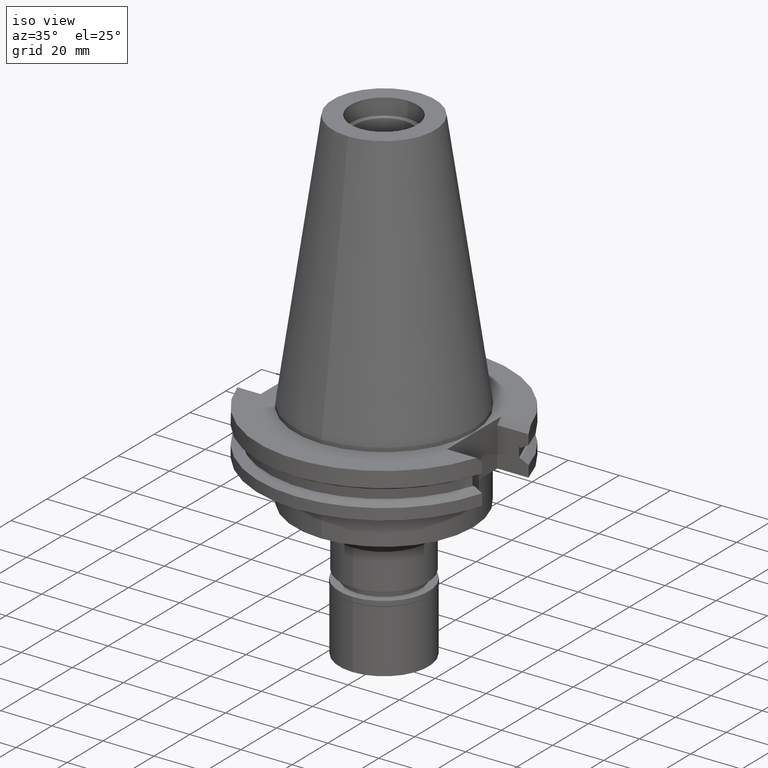
[diagram: clean part render]
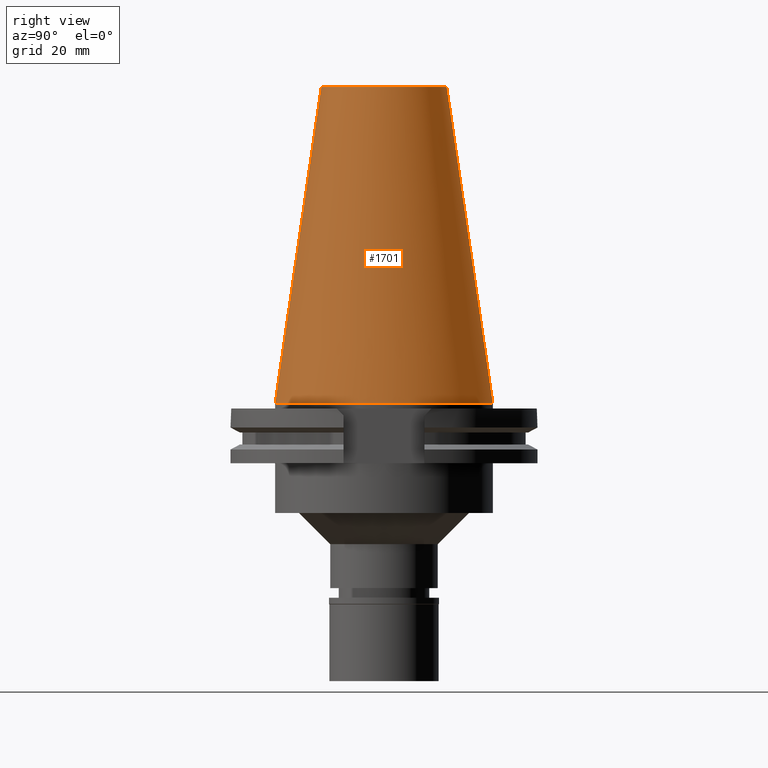
[diagram: tour spotlight — one face highlighted and labeled with its STEP entity id]
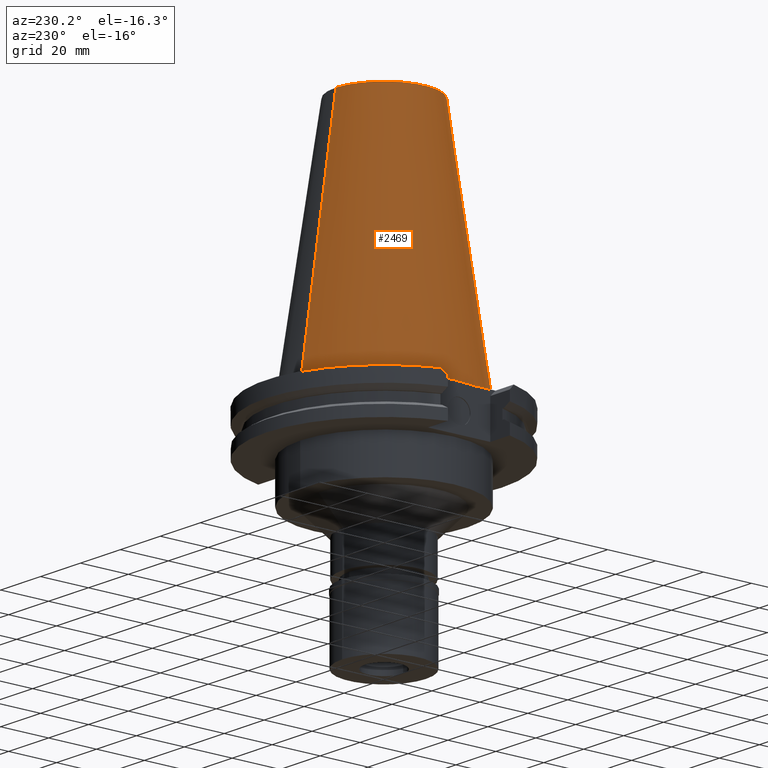
[diagram: tour spotlight — one face highlighted and labeled with its STEP entity id]
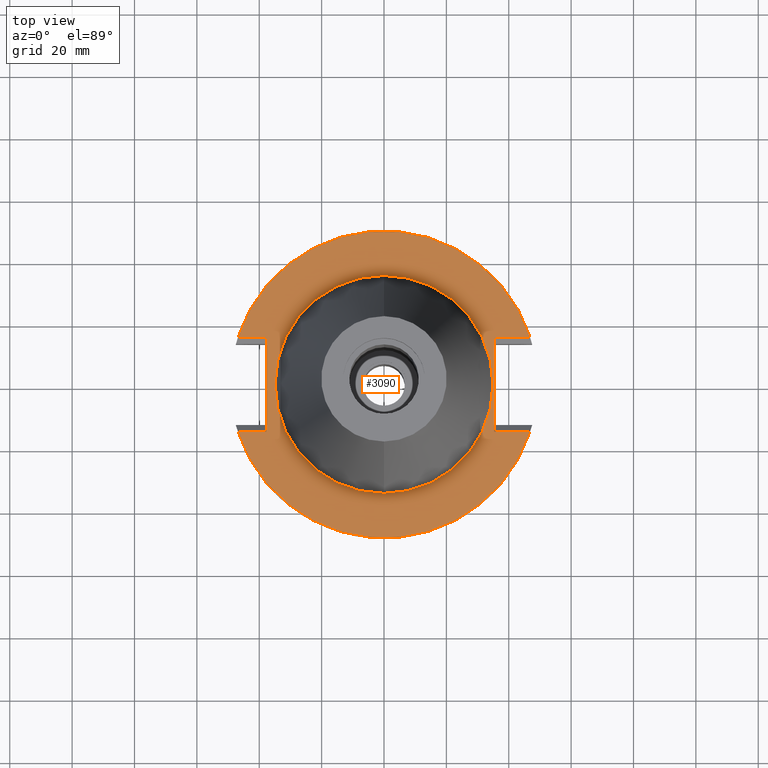
[diagram: tour spotlight — one face highlighted and labeled with its STEP entity id]
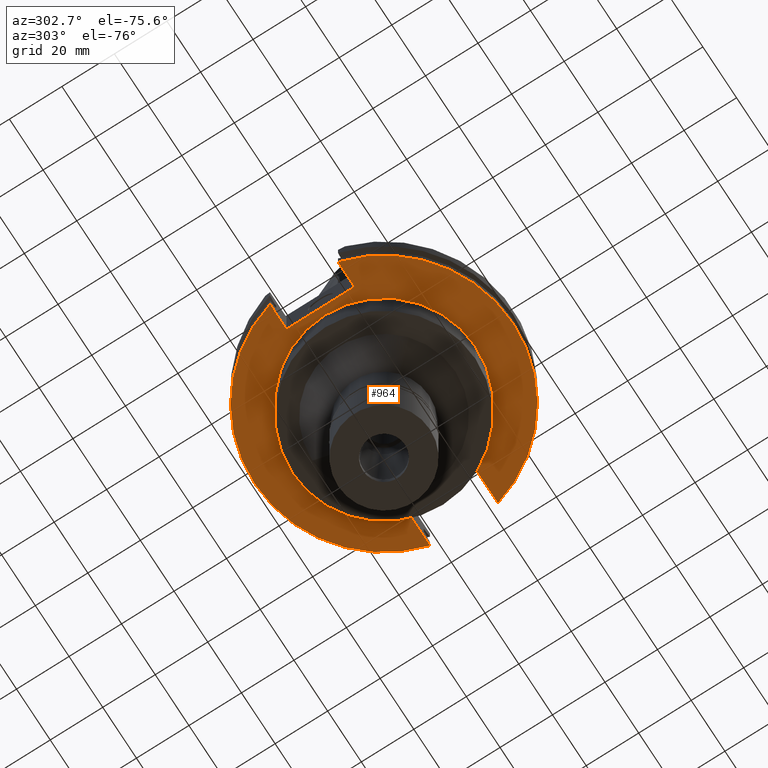
[diagram: tour spotlight — one face highlighted and labeled with its STEP entity id]
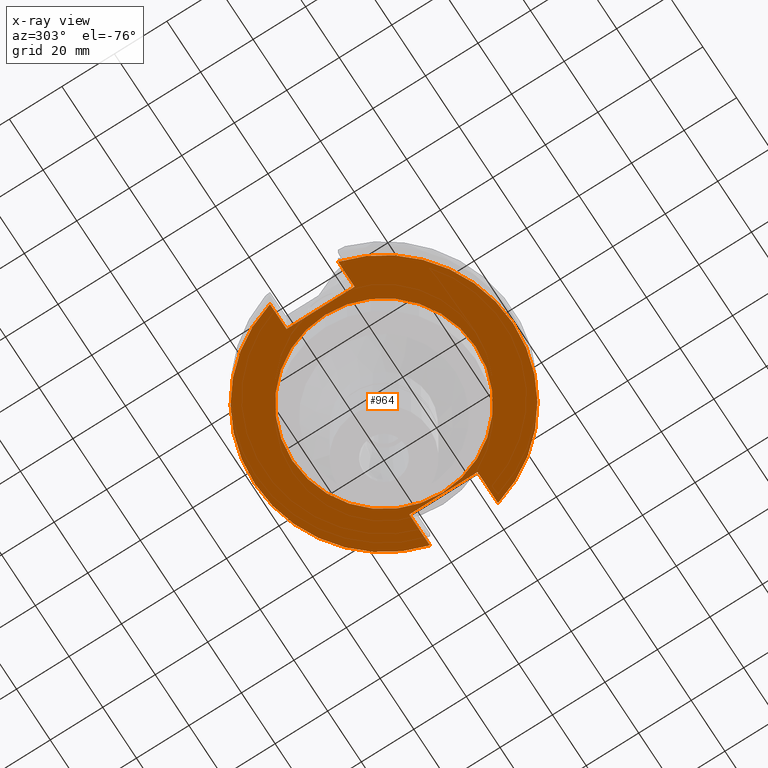
[diagram: x-ray of the same camera — body ghosted, this tour face saturated]
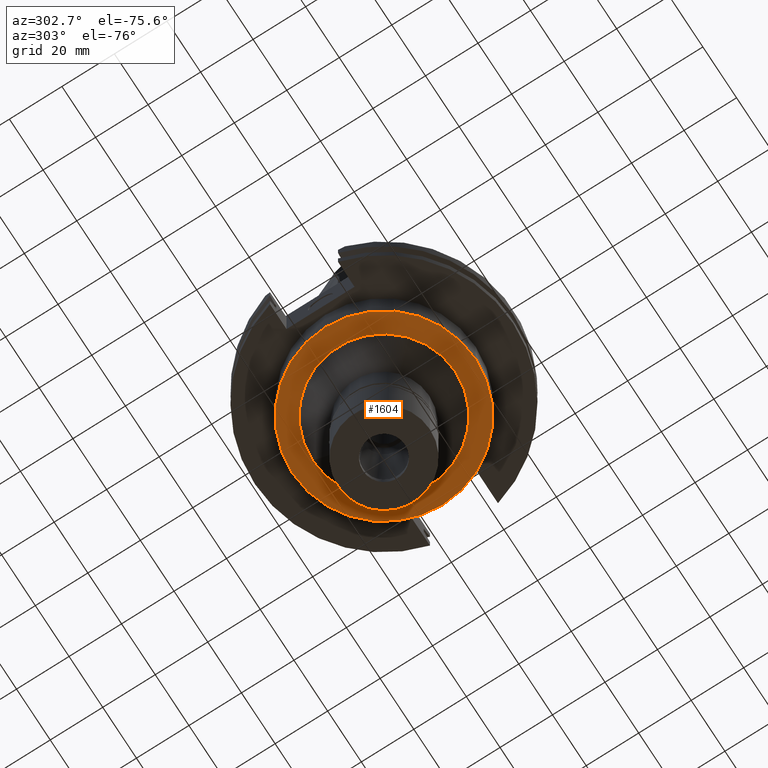
[diagram: tour spotlight — one face highlighted and labeled with its STEP entity id]
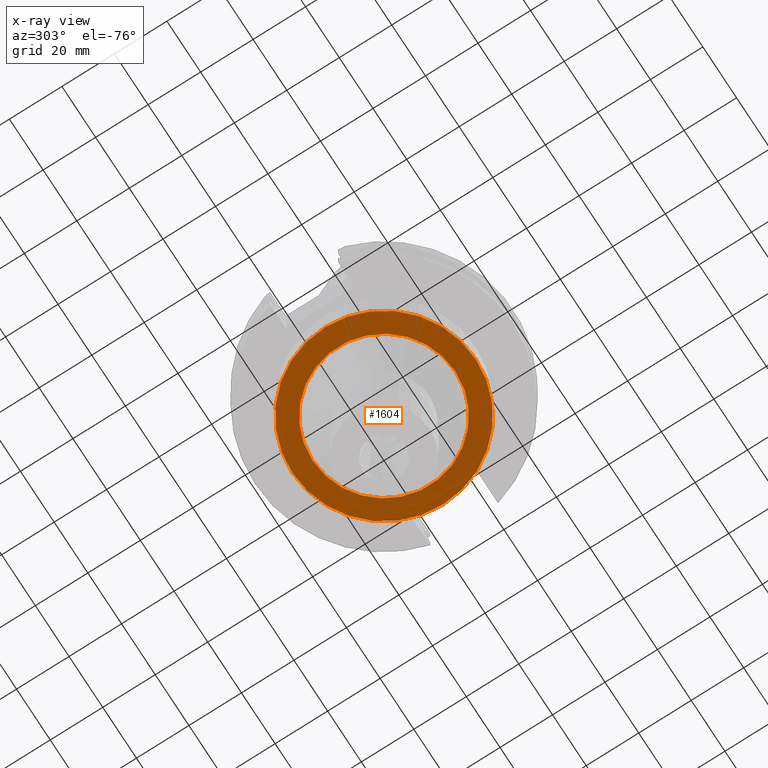
[diagram: x-ray of the same camera — body ghosted, this tour face saturated]
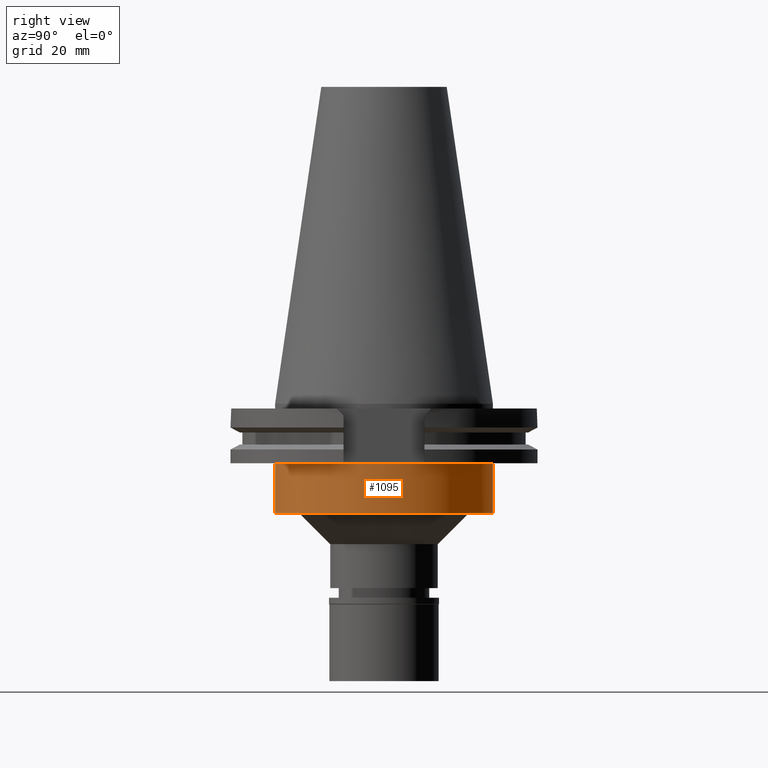
[diagram: tour spotlight — one face highlighted and labeled with its STEP entity id]
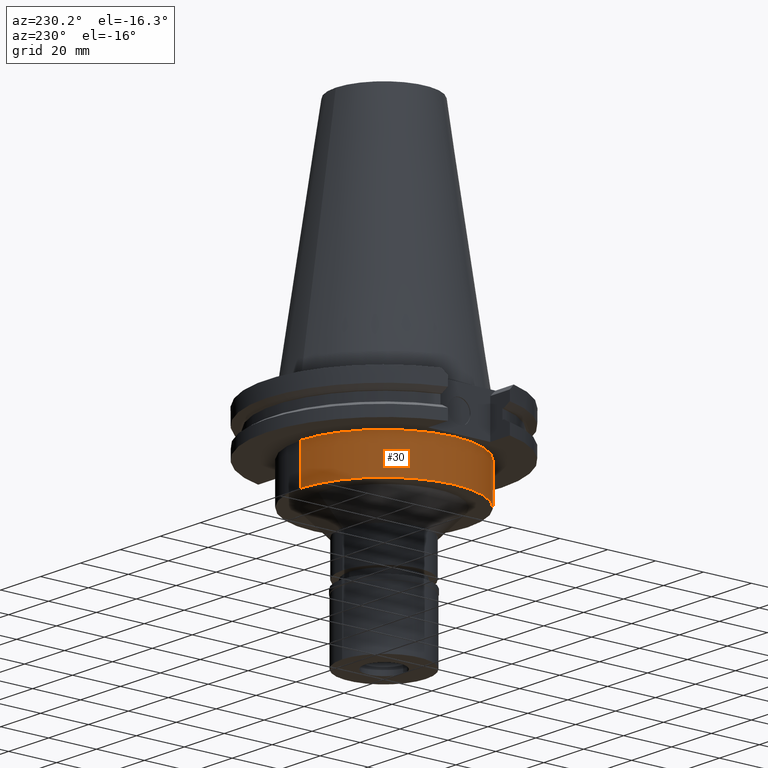
[diagram: tour spotlight — one face highlighted and labeled with its STEP entity id]
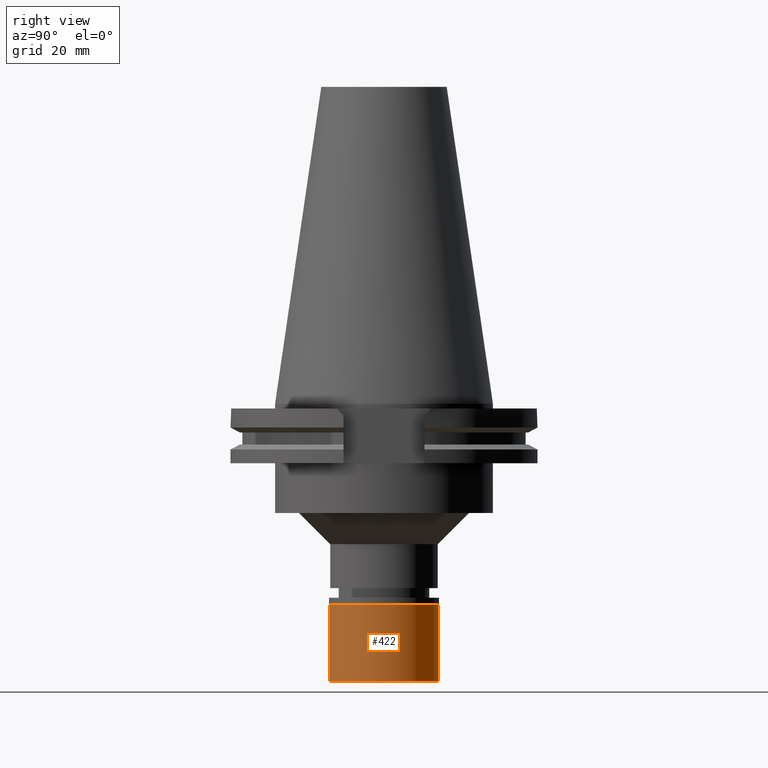
[diagram: tour spotlight — one face highlighted and labeled with its STEP entity id]
A machine part: a face-by-face anatomy tour. The part has 91 B-rep faces; the first image is the clean iso view, then the 8 largest visible faces are spotlighted one at a time (largest first), each with its STEP entity span.

Face 1 — right view, entity #1701. In plain terms, the highlighted conical surface has half-angle 8.297 deg.
Definition (entity closure, byte-faithful):
#120 = VERTEX_POINT ( 'NONE', #1569 ) ;
#403 = AXIS2_PLACEMENT_3D ( 'NONE', #1336, #3143, #1352 ) ;
#431 = CARTESIAN_POINT ( 'NONE',  ( 0.0000000000000000000, -20.10832422387000307, 101.5999999999999943 ) ) ;
#460 = CARTESIAN_POINT ( 'NONE',  ( 0.0000000000000000000, 20.10832422387000307, 101.5999999999999943 ) ) ;
#566 = VECTOR ( 'NONE', #1490, 1000.000000000000114 ) ;
#790 = CIRCLE ( 'NONE', #403, 34.92499999999999716 ) ;
#887 = ORIENTED_EDGE ( 'NONE', *, *, #994, .T. ) ;
#900 = CARTESIAN_POINT ( 'NONE',  ( 0.0000000000000000000, 20.10832422388000040, 101.5999999999999943 ) ) ;
#936 = LINE ( 'NONE', #431, #2237 ) ;
#958 = DIRECTION ( 'NONE',  ( 0.0000000000000000000, 0.0000000000000000000, -1.000000000000000000 ) ) ;
#994 = EDGE_CURVE ( 'NONE', #120, #2710, #936, .T. ) ;
#1171 = FACE_OUTER_BOUND ( 'NONE', #1768, .T. ) ;
#1176 = ORIENTED_EDGE ( 'NONE', *, *, #1228, .F. ) ;
#1204 = DIRECTION ( 'NONE',  ( 0.0000000000000000000, -1.000000000000000000, 0.0000000000000000000 ) ) ;
#1228 = EDGE_CURVE ( 'NONE', #1502, #2150, #2770, .T. ) ;
#1304 = CARTESIAN_POINT ( 'NONE',  ( 0.0000000000000000000, -34.92499999999999716, 4.618527782441000579E-13 ) ) ;
#1333 = EDGE_CURVE ( 'NONE', #2150, #2710, #790, .T. ) ;
#1336 = CARTESIAN_POINT ( 'NONE',  ( 0.0000000000000000000, 1.846767373113999857E-14, 7.389644451905000534E-13 ) ) ;
#1352 = DIRECTION ( 'NONE',  ( 0.0000000000000000000, 1.000000000000000000, 0.0000000000000000000 ) ) ;
#1460 = EDGE_CURVE ( 'NONE', #1502, #120, #3082, .T. ) ;
#1469 = CARTESIAN_POINT ( 'NONE',  ( 0.0000000000000000000, 1.846767373113999857E-14, 101.5999999999999943 ) ) ;
#1490 = DIRECTION ( 'NONE',  ( 0.0000000000000000000, 0.1443069799456937474, -0.9895329683941577192 ) ) ;
#1502 = VERTEX_POINT ( 'NONE', #900 ) ;
#1569 = CARTESIAN_POINT ( 'NONE',  ( 0.0000000000000000000, -20.10832422388000040, 101.5999999999999943 ) ) ;
#1638 = AXIS2_PLACEMENT_3D ( 'NONE', #1469, #3228, #2451 ) ;
#1640 = AXIS2_PLACEMENT_3D ( 'NONE', #1715, #958, #1204 ) ;
#1701 = ADVANCED_FACE ( 'NONE', ( #1171 ), #3141, .T. ) ;
#1715 = CARTESIAN_POINT ( 'NONE',  ( 0.0000000000000000000, 1.846767373113999857E-14, 50.79999999999999716 ) ) ;
#1768 = EDGE_LOOP ( 'NONE', ( #3072, #887, #3180, #1176 ) ) ;
#1831 = CARTESIAN_POINT ( 'NONE',  ( 0.0000000000000000000, 34.92499999999999716, 4.618527782441000579E-13 ) ) ;
#2150 = VERTEX_POINT ( 'NONE', #1831 ) ;
#2237 = VECTOR ( 'NONE', #2689, 1000.000000000000114 ) ;
#2451 = DIRECTION ( 'NONE',  ( 0.0000000000000000000, 1.000000000000000000, 0.0000000000000000000 ) ) ;
#2689 = DIRECTION ( 'NONE',  ( 0.0000000000000000000, -0.1443069799456937474, -0.9895329683941577192 ) ) ;
#2710 = VERTEX_POINT ( 'NONE', #1304 ) ;
#2770 = LINE ( 'NONE', #460, #566 ) ;
#3072 = ORIENTED_EDGE ( 'NONE', *, *, #1460, .T. ) ;
#3082 = CIRCLE ( 'NONE', #1638, 20.10832422388000040 ) ;
#3141 = CONICAL_SURFACE ( 'NONE', #1640, 27.51666211194000056, 0.1448125860318199565 ) ;
#3143 = DIRECTION ( 'NONE',  ( 0.0000000000000000000, 0.0000000000000000000, -1.000000000000000000 ) ) ;
#3180 = ORIENTED_EDGE ( 'NONE', *, *, #1333, .F. ) ;
#3228 = DIRECTION ( 'NONE',  ( 0.0000000000000000000, 0.0000000000000000000, -1.000000000000000000 ) ) ;

Face 2 — auxiliary view, entity #2469. In plain terms, the highlighted conical surface has half-angle 8.297 deg.
Definition (entity closure, byte-faithful):
#6 = CIRCLE ( 'NONE', #287, 20.10832422388000040 ) ;
#120 = VERTEX_POINT ( 'NONE', #1569 ) ;
#163 = CONICAL_SURFACE ( 'NONE', #2433, 27.51666211194000056, 0.1448125860318199565 ) ;
#185 = DIRECTION ( 'NONE',  ( 0.0000000000000000000, 0.0000000000000000000, -1.000000000000000000 ) ) ;
#287 = AXIS2_PLACEMENT_3D ( 'NONE', #2926, #562, #623 ) ;
#431 = CARTESIAN_POINT ( 'NONE',  ( 0.0000000000000000000, -20.10832422387000307, 101.5999999999999943 ) ) ;
#448 = DIRECTION ( 'NONE',  ( 0.0000000000000000000, 0.0000000000000000000, -1.000000000000000000 ) ) ;
#460 = CARTESIAN_POINT ( 'NONE',  ( 0.0000000000000000000, 20.10832422387000307, 101.5999999999999943 ) ) ;
#542 = ORIENTED_EDGE ( 'NONE', *, *, #1228, .T. ) ;
#562 = DIRECTION ( 'NONE',  ( 0.0000000000000000000, 0.0000000000000000000, -1.000000000000000000 ) ) ;
#566 = VECTOR ( 'NONE', #1490, 1000.000000000000114 ) ;
#567 = AXIS2_PLACEMENT_3D ( 'NONE', #1214, #185, #2232 ) ;
#623 = DIRECTION ( 'NONE',  ( 0.0000000000000000000, -1.000000000000000000, 0.0000000000000000000 ) ) ;
#895 = CIRCLE ( 'NONE', #567, 34.92499999999999716 ) ;
#900 = CARTESIAN_POINT ( 'NONE',  ( 0.0000000000000000000, 20.10832422388000040, 101.5999999999999943 ) ) ;
#936 = LINE ( 'NONE', #431, #2237 ) ;
#994 = EDGE_CURVE ( 'NONE', #120, #2710, #936, .T. ) ;
#1214 = CARTESIAN_POINT ( 'NONE',  ( 0.0000000000000000000, 1.846767373113999857E-14, 7.389644451905000534E-13 ) ) ;
#1228 = EDGE_CURVE ( 'NONE', #1502, #2150, #2770, .T. ) ;
#1304 = CARTESIAN_POINT ( 'NONE',  ( 0.0000000000000000000, -34.92499999999999716, 4.618527782441000579E-13 ) ) ;
#1314 = ORIENTED_EDGE ( 'NONE', *, *, #2612, .T. ) ;
#1474 = FACE_OUTER_BOUND ( 'NONE', #1643, .T. ) ;
#1490 = DIRECTION ( 'NONE',  ( 0.0000000000000000000, 0.1443069799456937474, -0.9895329683941577192 ) ) ;
#1493 = CARTESIAN_POINT ( 'NONE',  ( 0.0000000000000000000, 1.846767373113999857E-14, 50.79999999999999716 ) ) ;
#1502 = VERTEX_POINT ( 'NONE', #900 ) ;
#1569 = CARTESIAN_POINT ( 'NONE',  ( 0.0000000000000000000, -20.10832422388000040, 101.5999999999999943 ) ) ;
#1622 = EDGE_CURVE ( 'NONE', #2710, #2150, #895, .T. ) ;
#1643 = EDGE_LOOP ( 'NONE', ( #2849, #2266, #1314, #542 ) ) ;
#1831 = CARTESIAN_POINT ( 'NONE',  ( 0.0000000000000000000, 34.92499999999999716, 4.618527782441000579E-13 ) ) ;
#2150 = VERTEX_POINT ( 'NONE', #1831 ) ;
#2232 = DIRECTION ( 'NONE',  ( 0.0000000000000000000, -1.000000000000000000, 0.0000000000000000000 ) ) ;
#2237 = VECTOR ( 'NONE', #2689, 1000.000000000000114 ) ;
#2266 = ORIENTED_EDGE ( 'NONE', *, *, #994, .F. ) ;
#2433 = AXIS2_PLACEMENT_3D ( 'NONE', #1493, #448, #2528 ) ;
#2469 = ADVANCED_FACE ( 'NONE', ( #1474 ), #163, .T. ) ;
#2528 = DIRECTION ( 'NONE',  ( 0.0000000000000000000, -1.000000000000000000, 0.0000000000000000000 ) ) ;
#2612 = EDGE_CURVE ( 'NONE', #120, #1502, #6, .T. ) ;
#2689 = DIRECTION ( 'NONE',  ( 0.0000000000000000000, -0.1443069799456937474, -0.9895329683941577192 ) ) ;
#2710 = VERTEX_POINT ( 'NONE', #1304 ) ;
#2770 = LINE ( 'NONE', #460, #566 ) ;
#2849 = ORIENTED_EDGE ( 'NONE', *, *, #1622, .F. ) ;
#2926 = CARTESIAN_POINT ( 'NONE',  ( 0.0000000000000000000, 1.846767373113999857E-14, 101.5999999999999943 ) ) ;

Face 3 — top view, entity #3090. In plain terms, the highlighted planar face has unit normal (0, 0, -1).
Definition (entity closure, byte-faithful):
#130 = VERTEX_POINT ( 'NONE', #1224 ) ;
#132 = VERTEX_POINT ( 'NONE', #2972 ) ;
#277 = CARTESIAN_POINT ( 'NONE',  ( 46.82089417396999664, -15.15499999999999936, -1.500000000000000000 ) ) ;
#293 = EDGE_LOOP ( 'NONE', ( #2149, #2534 ) ) ;
#307 = PLANE ( 'NONE',  #2695 ) ;
#318 = CARTESIAN_POINT ( 'NONE',  ( 35.27000000000000313, 15.15499999999999936, -1.500000000000000000 ) ) ;
#354 = FACE_OUTER_BOUND ( 'NONE', #2726, .T. ) ;
#364 = CIRCLE ( 'NONE', #2680, 34.92499999999999716 ) ;
#512 = AXIS2_PLACEMENT_3D ( 'NONE', #998, #1253, #2817 ) ;
#553 = CARTESIAN_POINT ( 'NONE',  ( 0.0000000000000000000, 2.578799997304999674E-14, -1.500000000000000000 ) ) ;
#613 = CARTESIAN_POINT ( 'NONE',  ( 35.27000000000000313, -15.15499999999999936, -1.500000000000000000 ) ) ;
#644 = EDGE_CURVE ( 'NONE', #2602, #1657, #794, .T. ) ;
#673 = EDGE_CURVE ( 'NONE', #875, #3001, #3035, .T. ) ;
#794 = LINE ( 'NONE', #3066, #2074 ) ;
#828 = DIRECTION ( 'NONE',  ( 0.0000000000000000000, -1.000000000000000000, 0.0000000000000000000 ) ) ;
#838 = CARTESIAN_POINT ( 'NONE',  ( 0.0000000000000000000, 34.92499999999999716, -1.500000000000000000 ) ) ;
#875 = VERTEX_POINT ( 'NONE', #613 ) ;
#880 = EDGE_CURVE ( 'NONE', #130, #875, #1909, .T. ) ;
#899 = EDGE_CURVE ( 'NONE', #1500, #2603, #364, .T. ) ;
#909 = DIRECTION ( 'NONE',  ( 1.000000000000000000, 0.0000000000000000000, 0.0000000000000000000 ) ) ;
#910 = ORIENTED_EDGE ( 'NONE', *, *, #2379, .F. ) ;
#955 = CARTESIAN_POINT ( 'NONE',  ( 0.0000000000000000000, 2.578799997304999674E-14, -1.500000000000000000 ) ) ;
#959 = EDGE_CURVE ( 'NONE', #1319, #2602, #2719, .T. ) ;
#966 = CARTESIAN_POINT ( 'NONE',  ( -46.82089417396999664, 15.15499999999999936, -1.500000000000000000 ) ) ;
#982 = DIRECTION ( 'NONE',  ( 0.0000000000000000000, 0.0000000000000000000, -1.000000000000000000 ) ) ;
#998 = CARTESIAN_POINT ( 'NONE',  ( 0.0000000000000000000, 2.578799997304999674E-14, -1.500000000000000000 ) ) ;
#1034 = CIRCLE ( 'NONE', #2252, 34.92499999999999716 ) ;
#1051 = CARTESIAN_POINT ( 'NONE',  ( -37.67999999999999972, 15.15499999999999936, -1.500000000000000000 ) ) ;
#1054 = CARTESIAN_POINT ( 'NONE',  ( 35.27000000000000313, -15.15499999999999936, -1.500000000000000000 ) ) ;
#1087 = CIRCLE ( 'NONE', #1522, 49.21249999999999858 ) ;
#1106 = DIRECTION ( 'NONE',  ( 0.0000000000000000000, 0.0000000000000000000, -1.000000000000000000 ) ) ;
#1113 = VECTOR ( 'NONE', #1470, 1000.000000000000000 ) ;
#1157 = EDGE_CURVE ( 'NONE', #1657, #132, #2510, .T. ) ;
#1224 = CARTESIAN_POINT ( 'NONE',  ( 35.27000000000000313, 15.15499999999999936, -1.500000000000000000 ) ) ;
#1253 = DIRECTION ( 'NONE',  ( 0.0000000000000000000, 0.0000000000000000000, -1.000000000000000000 ) ) ;
#1272 = LINE ( 'NONE', #3037, #2722 ) ;
#1274 = VECTOR ( 'NONE', #2261, 1000.000000000000000 ) ;
#1292 = DIRECTION ( 'NONE',  ( -1.000000000000000000, 1.204850662821000088E-14, 0.0000000000000000000 ) ) ;
#1319 = VERTEX_POINT ( 'NONE', #3124 ) ;
#1331 = CARTESIAN_POINT ( 'NONE',  ( 0.0000000000000000000, 2.578799997304999674E-14, -1.500000000000000000 ) ) ;
#1395 = DIRECTION ( 'NONE',  ( 0.0000000000000000000, 1.000000000000000000, 0.0000000000000000000 ) ) ;
#1464 = CARTESIAN_POINT ( 'NONE',  ( 35.27000000000000313, 15.15499999999999936, -1.500000000000000000 ) ) ;
#1470 = DIRECTION ( 'NONE',  ( 0.0000000000000000000, 1.000000000000000000, 0.0000000000000000000 ) ) ;
#1500 = VERTEX_POINT ( 'NONE', #2947 ) ;
#1522 = AXIS2_PLACEMENT_3D ( 'NONE', #955, #982, #2005 ) ;
#1548 = ORIENTED_EDGE ( 'NONE', *, *, #1952, .T. ) ;
#1571 = ORIENTED_EDGE ( 'NONE', *, *, #959, .F. ) ;
#1657 = VERTEX_POINT ( 'NONE', #966 ) ;
#1662 = ORIENTED_EDGE ( 'NONE', *, *, #880, .F. ) ;
#1663 = ORIENTED_EDGE ( 'NONE', *, *, #1157, .F. ) ;
#1810 = DIRECTION ( 'NONE',  ( -1.000000000000000000, -1.243716813234000012E-14, 0.0000000000000000000 ) ) ;
#1826 = EDGE_CURVE ( 'NONE', #130, #132, #2482, .T. ) ;
#1873 = FACE_BOUND ( 'NONE', #293, .T. ) ;
#1909 = LINE ( 'NONE', #318, #2837 ) ;
#1952 = EDGE_CURVE ( 'NONE', #1319, #2716, #1272, .T. ) ;
#2005 = DIRECTION ( 'NONE',  ( 0.0000000000000000000, -1.000000000000000000, 0.0000000000000000000 ) ) ;
#2074 = VECTOR ( 'NONE', #1810, 1000.000000000000000 ) ;
#2149 = ORIENTED_EDGE ( 'NONE', *, *, #3069, .F. ) ;
#2236 = CARTESIAN_POINT ( 'NONE',  ( -37.67999999999999972, -15.15499999999999936, -1.500000000000000000 ) ) ;
#2252 = AXIS2_PLACEMENT_3D ( 'NONE', #1331, #3170, #1395 ) ;
#2261 = DIRECTION ( 'NONE',  ( 1.000000000000000000, 1.014982473518000116E-14, 0.0000000000000000000 ) ) ;
#2356 = DIRECTION ( 'NONE',  ( 0.0000000000000000000, -1.000000000000000000, 0.0000000000000000000 ) ) ;
#2379 = EDGE_CURVE ( 'NONE', #3001, #2716, #1087, .T. ) ;
#2400 = DIRECTION ( 'NONE',  ( 0.0000000000000000000, -1.000000000000000000, 0.0000000000000000000 ) ) ;
#2482 = LINE ( 'NONE', #1464, #3193 ) ;
#2493 = ORIENTED_EDGE ( 'NONE', *, *, #1826, .T. ) ;
#2510 = CIRCLE ( 'NONE', #512, 49.21249999999999858 ) ;
#2534 = ORIENTED_EDGE ( 'NONE', *, *, #899, .F. ) ;
#2602 = VERTEX_POINT ( 'NONE', #1051 ) ;
#2603 = VERTEX_POINT ( 'NONE', #838 ) ;
#2680 = AXIS2_PLACEMENT_3D ( 'NONE', #553, #3148, #2400 ) ;
#2695 = AXIS2_PLACEMENT_3D ( 'NONE', #3185, #1106, #2356 ) ;
#2716 = VERTEX_POINT ( 'NONE', #3225 ) ;
#2719 = LINE ( 'NONE', #2236, #1113 ) ;
#2722 = VECTOR ( 'NONE', #1292, 1000.000000000000000 ) ;
#2726 = EDGE_LOOP ( 'NONE', ( #1548, #910, #2848, #1662, #2493, #1663, #2956, #1571 ) ) ;
#2817 = DIRECTION ( 'NONE',  ( 0.0000000000000000000, 1.000000000000000000, 0.0000000000000000000 ) ) ;
#2837 = VECTOR ( 'NONE', #828, 1000.000000000000000 ) ;
#2848 = ORIENTED_EDGE ( 'NONE', *, *, #673, .F. ) ;
#2947 = CARTESIAN_POINT ( 'NONE',  ( 0.0000000000000000000, -34.92499999999999716, -1.500000000000000000 ) ) ;
#2956 = ORIENTED_EDGE ( 'NONE', *, *, #644, .F. ) ;
#2972 = CARTESIAN_POINT ( 'NONE',  ( 46.82089417396999664, 15.15499999999999936, -1.500000000000000000 ) ) ;
#3001 = VERTEX_POINT ( 'NONE', #277 ) ;
#3035 = LINE ( 'NONE', #1054, #1274 ) ;
#3037 = CARTESIAN_POINT ( 'NONE',  ( -37.67999999999999972, -15.15499999999999936, -1.500000000000000000 ) ) ;
#3066 = CARTESIAN_POINT ( 'NONE',  ( -37.67999999999999972, 15.15499999999999936, -1.500000000000000000 ) ) ;
#3069 = EDGE_CURVE ( 'NONE', #2603, #1500, #1034, .T. ) ;
#3090 = ADVANCED_FACE ( 'NONE', ( #354, #1873 ), #307, .F. ) ;
#3124 = CARTESIAN_POINT ( 'NONE',  ( -37.67999999999999972, -15.15499999999999936, -1.500000000000000000 ) ) ;
#3148 = DIRECTION ( 'NONE',  ( 0.0000000000000000000, 0.0000000000000000000, 1.000000000000000000 ) ) ;
#3170 = DIRECTION ( 'NONE',  ( 0.0000000000000000000, 0.0000000000000000000, 1.000000000000000000 ) ) ;
#3185 = CARTESIAN_POINT ( 'NONE',  ( 0.0000000000000000000, 1.206277097159999845E-14, -1.500000000000000000 ) ) ;
#3193 = VECTOR ( 'NONE', #909, 1000.000000000000000 ) ;
#3225 = CARTESIAN_POINT ( 'NONE',  ( -46.82089417396999664, -15.15499999999999936, -1.500000000000000000 ) ) ;

Face 4 — auxiliary view, entity #964. An x-ray twin of the same camera follows (body ghosted, this face saturated) — the face is partly hidden behind the body. In plain terms, the highlighted planar face has unit normal (0, 0, -1).
Definition (entity closure, byte-faithful):
#20 = DIRECTION ( 'NONE',  ( 1.000000000000000000, 1.455229645530999953E-14, 0.0000000000000000000 ) ) ;
#85 = LINE ( 'NONE', #1086, #1605 ) ;
#129 = CIRCLE ( 'NONE', #1693, 34.92499999999999716 ) ;
#147 = EDGE_CURVE ( 'NONE', #509, #2078, #1328, .T. ) ;
#219 = ORIENTED_EDGE ( 'NONE', *, *, #1153, .F. ) ;
#225 = DIRECTION ( 'NONE',  ( 0.0000000000000000000, 0.0000000000000000000, -1.000000000000000000 ) ) ;
#271 = EDGE_CURVE ( 'NONE', #2305, #314, #833, .T. ) ;
#281 = DIRECTION ( 'NONE',  ( -1.000000000000000000, -1.795085297572000011E-14, 0.0000000000000000000 ) ) ;
#314 = VERTEX_POINT ( 'NONE', #949 ) ;
#336 = CARTESIAN_POINT ( 'NONE',  ( 47.47671146204000081, -12.95500000000000007, -19.05000000000000071 ) ) ;
#415 = LINE ( 'NONE', #1911, #2657 ) ;
#446 = FACE_BOUND ( 'NONE', #1408, .T. ) ;
#486 = ORIENTED_EDGE ( 'NONE', *, *, #843, .T. ) ;
#509 = VERTEX_POINT ( 'NONE', #640 ) ;
#640 = CARTESIAN_POINT ( 'NONE',  ( -47.47671146204000081, -12.95500000000000007, -19.05000000000000071 ) ) ;
#651 = EDGE_CURVE ( 'NONE', #2665, #854, #1789, .T. ) ;
#744 = AXIS2_PLACEMENT_3D ( 'NONE', #2213, #3272, #2743 ) ;
#755 = CARTESIAN_POINT ( 'NONE',  ( 35.27000000000000313, -12.95500000000000007, -19.05000000000000071 ) ) ;
#833 = LINE ( 'NONE', #3137, #2407 ) ;
#843 = EDGE_CURVE ( 'NONE', #314, #1301, #85, .T. ) ;
#854 = VERTEX_POINT ( 'NONE', #3164 ) ;
#935 = VERTEX_POINT ( 'NONE', #2611 ) ;
#949 = CARTESIAN_POINT ( 'NONE',  ( -37.67999999999999972, 12.95500000000000007, -19.05000000000000071 ) ) ;
#964 = ADVANCED_FACE ( 'NONE', ( #3264, #446 ), #2184, .T. ) ;
#1068 = CARTESIAN_POINT ( 'NONE',  ( 35.27000000000000313, -12.95500000000000007, -19.05000000000000071 ) ) ;
#1086 = CARTESIAN_POINT ( 'NONE',  ( -37.67999999999999972, 12.95500000000000007, -19.05000000000000071 ) ) ;
#1100 = EDGE_CURVE ( 'NONE', #2293, #935, #1546, .T. ) ;
#1118 = EDGE_LOOP ( 'NONE', ( #486, #2965, #1568, #1986, #1717, #2590, #3223, #1767 ) ) ;
#1153 = EDGE_CURVE ( 'NONE', #935, #2293, #129, .T. ) ;
#1196 = VERTEX_POINT ( 'NONE', #755 ) ;
#1205 = EDGE_CURVE ( 'NONE', #2305, #509, #2836, .T. ) ;
#1301 = VERTEX_POINT ( 'NONE', #1318 ) ;
#1303 = EDGE_CURVE ( 'NONE', #1196, #2078, #1607, .T. ) ;
#1318 = CARTESIAN_POINT ( 'NONE',  ( -47.47671146204000081, 12.95500000000000007, -19.05000000000000071 ) ) ;
#1320 = CARTESIAN_POINT ( 'NONE',  ( 35.27000000000000313, 12.95500000000000007, -19.05000000000000071 ) ) ;
#1328 = CIRCLE ( 'NONE', #744, 49.21249999999999858 ) ;
#1370 = DIRECTION ( 'NONE',  ( -1.000000000000000000, 1.813217472294999948E-14, 0.0000000000000000000 ) ) ;
#1403 = ORIENTED_EDGE ( 'NONE', *, *, #1100, .F. ) ;
#1408 = EDGE_LOOP ( 'NONE', ( #1403, #219 ) ) ;
#1420 = CARTESIAN_POINT ( 'NONE',  ( -37.67999999999999972, -12.95500000000000007, -19.05000000000000071 ) ) ;
#1506 = DIRECTION ( 'NONE',  ( 0.0000000000000000000, 1.000000000000000000, 0.0000000000000000000 ) ) ;
#1546 = CIRCLE ( 'NONE', #2013, 34.92499999999999716 ) ;
#1568 = ORIENTED_EDGE ( 'NONE', *, *, #651, .F. ) ;
#1589 = VECTOR ( 'NONE', #2378, 1000.000000000000000 ) ;
#1605 = VECTOR ( 'NONE', #1370, 1000.000000000000000 ) ;
#1607 = LINE ( 'NONE', #1068, #1589 ) ;
#1693 = AXIS2_PLACEMENT_3D ( 'NONE', #2034, #225, #3312 ) ;
#1711 = CARTESIAN_POINT ( 'NONE',  ( 0.0000000000000000000, 0.0000000000000000000, -19.05000000000000071 ) ) ;
#1717 = ORIENTED_EDGE ( 'NONE', *, *, #1303, .T. ) ;
#1767 = ORIENTED_EDGE ( 'NONE', *, *, #271, .T. ) ;
#1789 = LINE ( 'NONE', #1830, #1814 ) ;
#1814 = VECTOR ( 'NONE', #20, 1000.000000000000000 ) ;
#1830 = CARTESIAN_POINT ( 'NONE',  ( 35.27000000000000313, 12.95500000000000007, -19.05000000000000071 ) ) ;
#1837 = AXIS2_PLACEMENT_3D ( 'NONE', #2038, #3063, #3110 ) ;
#1899 = CARTESIAN_POINT ( 'NONE',  ( 0.0000000000000000000, 34.92499999999999716, -19.05000000000000071 ) ) ;
#1911 = CARTESIAN_POINT ( 'NONE',  ( 35.27000000000000313, 12.95500000000000007, -19.05000000000000071 ) ) ;
#1986 = ORIENTED_EDGE ( 'NONE', *, *, #2202, .T. ) ;
#2001 = CARTESIAN_POINT ( 'NONE',  ( 0.0000000000000000000, 2.578799997304999674E-14, -19.05000000000000071 ) ) ;
#2013 = AXIS2_PLACEMENT_3D ( 'NONE', #2001, #2526, #1506 ) ;
#2034 = CARTESIAN_POINT ( 'NONE',  ( 0.0000000000000000000, 2.578799997304999674E-14, -19.05000000000000071 ) ) ;
#2038 = CARTESIAN_POINT ( 'NONE',  ( 0.0000000000000000000, 2.578799997304999674E-14, -19.05000000000000071 ) ) ;
#2078 = VERTEX_POINT ( 'NONE', #336 ) ;
#2184 = PLANE ( 'NONE',  #3260 ) ;
#2202 = EDGE_CURVE ( 'NONE', #2665, #1196, #415, .T. ) ;
#2207 = DIRECTION ( 'NONE',  ( 0.0000000000000000000, -1.000000000000000000, 0.0000000000000000000 ) ) ;
#2213 = CARTESIAN_POINT ( 'NONE',  ( 0.0000000000000000000, 2.578799997304999674E-14, -19.05000000000000071 ) ) ;
#2293 = VERTEX_POINT ( 'NONE', #1899 ) ;
#2305 = VERTEX_POINT ( 'NONE', #1420 ) ;
#2378 = DIRECTION ( 'NONE',  ( 1.000000000000000000, -1.411572756165000194E-14, 0.0000000000000000000 ) ) ;
#2391 = VECTOR ( 'NONE', #281, 1000.000000000000000 ) ;
#2407 = VECTOR ( 'NONE', #2942, 1000.000000000000000 ) ;
#2507 = DIRECTION ( 'NONE',  ( 0.0000000000000000000, -1.000000000000000000, 0.0000000000000000000 ) ) ;
#2526 = DIRECTION ( 'NONE',  ( 0.0000000000000000000, 0.0000000000000000000, -1.000000000000000000 ) ) ;
#2535 = EDGE_CURVE ( 'NONE', #854, #1301, #2701, .T. ) ;
#2590 = ORIENTED_EDGE ( 'NONE', *, *, #147, .F. ) ;
#2593 = CARTESIAN_POINT ( 'NONE',  ( -37.67999999999999972, -12.95500000000000007, -19.05000000000000071 ) ) ;
#2611 = CARTESIAN_POINT ( 'NONE',  ( 0.0000000000000000000, -34.92499999999999716, -19.05000000000000071 ) ) ;
#2657 = VECTOR ( 'NONE', #2207, 1000.000000000000000 ) ;
#2665 = VERTEX_POINT ( 'NONE', #1320 ) ;
#2701 = CIRCLE ( 'NONE', #1837, 49.21249999999999858 ) ;
#2703 = DIRECTION ( 'NONE',  ( 0.0000000000000000000, 0.0000000000000000000, -1.000000000000000000 ) ) ;
#2743 = DIRECTION ( 'NONE',  ( 0.0000000000000000000, -1.000000000000000000, 0.0000000000000000000 ) ) ;
#2836 = LINE ( 'NONE', #2593, #2391 ) ;
#2942 = DIRECTION ( 'NONE',  ( 0.0000000000000000000, 1.000000000000000000, 0.0000000000000000000 ) ) ;
#2965 = ORIENTED_EDGE ( 'NONE', *, *, #2535, .F. ) ;
#3063 = DIRECTION ( 'NONE',  ( 0.0000000000000000000, 0.0000000000000000000, 1.000000000000000000 ) ) ;
#3110 = DIRECTION ( 'NONE',  ( 0.0000000000000000000, 1.000000000000000000, 0.0000000000000000000 ) ) ;
#3137 = CARTESIAN_POINT ( 'NONE',  ( -37.67999999999999972, -12.95500000000000007, -19.05000000000000071 ) ) ;
#3164 = CARTESIAN_POINT ( 'NONE',  ( 47.47671146204000081, 12.95500000000000007, -19.05000000000000071 ) ) ;
#3223 = ORIENTED_EDGE ( 'NONE', *, *, #1205, .F. ) ;
#3260 = AXIS2_PLACEMENT_3D ( 'NONE', #1711, #2703, #2507 ) ;
#3264 = FACE_OUTER_BOUND ( 'NONE', #1118, .T. ) ;
#3272 = DIRECTION ( 'NONE',  ( 0.0000000000000000000, 0.0000000000000000000, 1.000000000000000000 ) ) ;
#3312 = DIRECTION ( 'NONE',  ( 0.0000000000000000000, -1.000000000000000000, 0.0000000000000000000 ) ) ;

Face 5 — auxiliary view, entity #1604. An x-ray twin of the same camera follows (body ghosted, this face saturated) — the face is partly hidden behind the body. In plain terms, the highlighted planar face has unit normal (0, 0, -1).
Definition (entity closure, byte-faithful):
#93 = AXIS2_PLACEMENT_3D ( 'NONE', #1700, #421, #960 ) ;
#245 = CARTESIAN_POINT ( 'NONE',  ( 0.0000000000000000000, 2.578799997304999674E-14, -35.00000000000000000 ) ) ;
#421 = DIRECTION ( 'NONE',  ( 0.0000000000000000000, 0.0000000000000000000, 1.000000000000000000 ) ) ;
#453 = CARTESIAN_POINT ( 'NONE',  ( 0.0000000000000000000, 0.0000000000000000000, -35.00000000000000000 ) ) ;
#647 = DIRECTION ( 'NONE',  ( 0.0000000000000000000, 1.000000000000000000, 0.0000000000000000000 ) ) ;
#752 = VERTEX_POINT ( 'NONE', #2547 ) ;
#862 = CIRCLE ( 'NONE', #93, 34.92499999999999716 ) ;
#882 = CARTESIAN_POINT ( 'NONE',  ( 0.0000000000000000000, 27.25000000000000000, -35.00000000000000000 ) ) ;
#944 = CIRCLE ( 'NONE', #3138, 34.92499999999999716 ) ;
#948 = PLANE ( 'NONE',  #2461 ) ;
#960 = DIRECTION ( 'NONE',  ( 0.0000000000000000000, 1.000000000000000000, 0.0000000000000000000 ) ) ;
#1055 = AXIS2_PLACEMENT_3D ( 'NONE', #1930, #2955, #647 ) ;
#1120 = EDGE_CURVE ( 'NONE', #752, #3231, #944, .T. ) ;
#1179 = DIRECTION ( 'NONE',  ( 0.0000000000000000000, -1.000000000000000000, 0.0000000000000000000 ) ) ;
#1332 = EDGE_LOOP ( 'NONE', ( #1361, #1968 ) ) ;
#1338 = CIRCLE ( 'NONE', #2532, 27.25000000000000000 ) ;
#1361 = ORIENTED_EDGE ( 'NONE', *, *, #1838, .F. ) ;
#1410 = VERTEX_POINT ( 'NONE', #2095 ) ;
#1479 = DIRECTION ( 'NONE',  ( 0.0000000000000000000, 0.0000000000000000000, -1.000000000000000000 ) ) ;
#1581 = VERTEX_POINT ( 'NONE', #882 ) ;
#1604 = ADVANCED_FACE ( 'NONE', ( #1969, #2435 ), #948, .T. ) ;
#1634 = CARTESIAN_POINT ( 'NONE',  ( 0.0000000000000000000, 34.92499999999999716, -35.00000000000000000 ) ) ;
#1700 = CARTESIAN_POINT ( 'NONE',  ( 0.0000000000000000000, 2.578799997304999674E-14, -35.00000000000000000 ) ) ;
#1737 = EDGE_LOOP ( 'NONE', ( #2322, #3091 ) ) ;
#1769 = DIRECTION ( 'NONE',  ( 0.0000000000000000000, -1.000000000000000000, 0.0000000000000000000 ) ) ;
#1838 = EDGE_CURVE ( 'NONE', #1581, #1410, #2572, .T. ) ;
#1930 = CARTESIAN_POINT ( 'NONE',  ( 0.0000000000000000000, 0.0000000000000000000, -35.00000000000000000 ) ) ;
#1968 = ORIENTED_EDGE ( 'NONE', *, *, #3274, .F. ) ;
#1969 = FACE_OUTER_BOUND ( 'NONE', #1737, .T. ) ;
#1987 = DIRECTION ( 'NONE',  ( 0.0000000000000000000, 0.0000000000000000000, 1.000000000000000000 ) ) ;
#2095 = CARTESIAN_POINT ( 'NONE',  ( 0.0000000000000000000, -27.25000000000000000, -35.00000000000000000 ) ) ;
#2322 = ORIENTED_EDGE ( 'NONE', *, *, #3311, .F. ) ;
#2435 = FACE_BOUND ( 'NONE', #1332, .T. ) ;
#2461 = AXIS2_PLACEMENT_3D ( 'NONE', #2997, #3190, #1179 ) ;
#2532 = AXIS2_PLACEMENT_3D ( 'NONE', #453, #1479, #3240 ) ;
#2547 = CARTESIAN_POINT ( 'NONE',  ( 0.0000000000000000000, -34.92499999999999716, -35.00000000000000000 ) ) ;
#2572 = CIRCLE ( 'NONE', #1055, 27.25000000000000000 ) ;
#2955 = DIRECTION ( 'NONE',  ( 0.0000000000000000000, 0.0000000000000000000, -1.000000000000000000 ) ) ;
#2997 = CARTESIAN_POINT ( 'NONE',  ( 0.0000000000000000000, 0.0000000000000000000, -35.00000000000000000 ) ) ;
#3091 = ORIENTED_EDGE ( 'NONE', *, *, #1120, .F. ) ;
#3138 = AXIS2_PLACEMENT_3D ( 'NONE', #245, #1987, #1769 ) ;
#3190 = DIRECTION ( 'NONE',  ( 0.0000000000000000000, 0.0000000000000000000, -1.000000000000000000 ) ) ;
#3231 = VERTEX_POINT ( 'NONE', #1634 ) ;
#3240 = DIRECTION ( 'NONE',  ( 0.0000000000000000000, -1.000000000000000000, 0.0000000000000000000 ) ) ;
#3274 = EDGE_CURVE ( 'NONE', #1410, #1581, #1338, .T. ) ;
#3311 = EDGE_CURVE ( 'NONE', #3231, #752, #862, .T. ) ;

Face 6 — right view, entity #1095. In plain terms, the highlighted cylindrical surface (partial cylindrical patch) has radius 34.925 mm, axis along (0, 0, -1).
Definition (entity closure, byte-faithful):
#15 = CARTESIAN_POINT ( 'NONE',  ( 0.0000000000000000000, 2.578799997304999674E-14, 110.5750000000000028 ) ) ;
#207 = FACE_OUTER_BOUND ( 'NONE', #2235, .T. ) ;
#245 = CARTESIAN_POINT ( 'NONE',  ( 0.0000000000000000000, 2.578799997304999674E-14, -35.00000000000000000 ) ) ;
#369 = ORIENTED_EDGE ( 'NONE', *, *, #1354, .T. ) ;
#395 = CARTESIAN_POINT ( 'NONE',  ( 0.0000000000000000000, 34.92499999999999716, -19.05000000000000071 ) ) ;
#490 = CYLINDRICAL_SURFACE ( 'NONE', #2996, 34.92499999999999716 ) ;
#738 = ORIENTED_EDGE ( 'NONE', *, *, #1120, .T. ) ;
#752 = VERTEX_POINT ( 'NONE', #2547 ) ;
#821 = DIRECTION ( 'NONE',  ( 0.0000000000000000000, 0.0000000000000000000, -1.000000000000000000 ) ) ;
#935 = VERTEX_POINT ( 'NONE', #2611 ) ;
#944 = CIRCLE ( 'NONE', #3138, 34.92499999999999716 ) ;
#1095 = ADVANCED_FACE ( 'NONE', ( #207 ), #490, .T. ) ;
#1100 = EDGE_CURVE ( 'NONE', #2293, #935, #1546, .T. ) ;
#1120 = EDGE_CURVE ( 'NONE', #752, #3231, #944, .T. ) ;
#1232 = ORIENTED_EDGE ( 'NONE', *, *, #1842, .F. ) ;
#1354 = EDGE_CURVE ( 'NONE', #935, #752, #2342, .T. ) ;
#1424 = DIRECTION ( 'NONE',  ( 0.0000000000000000000, 0.0000000000000000000, -1.000000000000000000 ) ) ;
#1506 = DIRECTION ( 'NONE',  ( 0.0000000000000000000, 1.000000000000000000, 0.0000000000000000000 ) ) ;
#1524 = DIRECTION ( 'NONE',  ( 0.0000000000000000000, -1.000000000000000000, 0.0000000000000000000 ) ) ;
#1546 = CIRCLE ( 'NONE', #2013, 34.92499999999999716 ) ;
#1634 = CARTESIAN_POINT ( 'NONE',  ( 0.0000000000000000000, 34.92499999999999716, -35.00000000000000000 ) ) ;
#1769 = DIRECTION ( 'NONE',  ( 0.0000000000000000000, -1.000000000000000000, 0.0000000000000000000 ) ) ;
#1842 = EDGE_CURVE ( 'NONE', #2293, #3231, #2709, .T. ) ;
#1899 = CARTESIAN_POINT ( 'NONE',  ( 0.0000000000000000000, 34.92499999999999716, -19.05000000000000071 ) ) ;
#1987 = DIRECTION ( 'NONE',  ( 0.0000000000000000000, 0.0000000000000000000, 1.000000000000000000 ) ) ;
#2001 = CARTESIAN_POINT ( 'NONE',  ( 0.0000000000000000000, 2.578799997304999674E-14, -19.05000000000000071 ) ) ;
#2013 = AXIS2_PLACEMENT_3D ( 'NONE', #2001, #2526, #1506 ) ;
#2226 = VECTOR ( 'NONE', #1424, 1000.000000000000000 ) ;
#2235 = EDGE_LOOP ( 'NONE', ( #2311, #369, #738, #1232 ) ) ;
#2274 = VECTOR ( 'NONE', #821, 1000.000000000000000 ) ;
#2293 = VERTEX_POINT ( 'NONE', #1899 ) ;
#2311 = ORIENTED_EDGE ( 'NONE', *, *, #1100, .T. ) ;
#2342 = LINE ( 'NONE', #2654, #2274 ) ;
#2526 = DIRECTION ( 'NONE',  ( 0.0000000000000000000, 0.0000000000000000000, -1.000000000000000000 ) ) ;
#2547 = CARTESIAN_POINT ( 'NONE',  ( 0.0000000000000000000, -34.92499999999999716, -35.00000000000000000 ) ) ;
#2578 = DIRECTION ( 'NONE',  ( 0.0000000000000000000, 0.0000000000000000000, -1.000000000000000000 ) ) ;
#2611 = CARTESIAN_POINT ( 'NONE',  ( 0.0000000000000000000, -34.92499999999999716, -19.05000000000000071 ) ) ;
#2654 = CARTESIAN_POINT ( 'NONE',  ( 0.0000000000000000000, -34.92499999999999716, -19.05000000000000071 ) ) ;
#2709 = LINE ( 'NONE', #395, #2226 ) ;
#2996 = AXIS2_PLACEMENT_3D ( 'NONE', #15, #2578, #1524 ) ;
#3138 = AXIS2_PLACEMENT_3D ( 'NONE', #245, #1987, #1769 ) ;
#3231 = VERTEX_POINT ( 'NONE', #1634 ) ;

Face 7 — auxiliary view, entity #30. In plain terms, the highlighted cylindrical surface (partial cylindrical patch) has radius 34.925 mm, axis along (0, 0, -1).
Definition (entity closure, byte-faithful):
#30 = ADVANCED_FACE ( 'NONE', ( #2797 ), #3308, .T. ) ;
#93 = AXIS2_PLACEMENT_3D ( 'NONE', #1700, #421, #960 ) ;
#129 = CIRCLE ( 'NONE', #1693, 34.92499999999999716 ) ;
#184 = DIRECTION ( 'NONE',  ( 0.0000000000000000000, -1.000000000000000000, 0.0000000000000000000 ) ) ;
#225 = DIRECTION ( 'NONE',  ( 0.0000000000000000000, 0.0000000000000000000, -1.000000000000000000 ) ) ;
#395 = CARTESIAN_POINT ( 'NONE',  ( 0.0000000000000000000, 34.92499999999999716, -19.05000000000000071 ) ) ;
#421 = DIRECTION ( 'NONE',  ( 0.0000000000000000000, 0.0000000000000000000, 1.000000000000000000 ) ) ;
#608 = ORIENTED_EDGE ( 'NONE', *, *, #3311, .T. ) ;
#752 = VERTEX_POINT ( 'NONE', #2547 ) ;
#821 = DIRECTION ( 'NONE',  ( 0.0000000000000000000, 0.0000000000000000000, -1.000000000000000000 ) ) ;
#862 = CIRCLE ( 'NONE', #93, 34.92499999999999716 ) ;
#902 = AXIS2_PLACEMENT_3D ( 'NONE', #1250, #1766, #184 ) ;
#935 = VERTEX_POINT ( 'NONE', #2611 ) ;
#960 = DIRECTION ( 'NONE',  ( 0.0000000000000000000, 1.000000000000000000, 0.0000000000000000000 ) ) ;
#1027 = ORIENTED_EDGE ( 'NONE', *, *, #1153, .T. ) ;
#1153 = EDGE_CURVE ( 'NONE', #935, #2293, #129, .T. ) ;
#1250 = CARTESIAN_POINT ( 'NONE',  ( 0.0000000000000000000, 2.578799997304999674E-14, 110.5750000000000028 ) ) ;
#1280 = ORIENTED_EDGE ( 'NONE', *, *, #1354, .F. ) ;
#1354 = EDGE_CURVE ( 'NONE', #935, #752, #2342, .T. ) ;
#1390 = EDGE_LOOP ( 'NONE', ( #608, #1280, #1027, #3280 ) ) ;
#1424 = DIRECTION ( 'NONE',  ( 0.0000000000000000000, 0.0000000000000000000, -1.000000000000000000 ) ) ;
#1634 = CARTESIAN_POINT ( 'NONE',  ( 0.0000000000000000000, 34.92499999999999716, -35.00000000000000000 ) ) ;
#1693 = AXIS2_PLACEMENT_3D ( 'NONE', #2034, #225, #3312 ) ;
#1700 = CARTESIAN_POINT ( 'NONE',  ( 0.0000000000000000000, 2.578799997304999674E-14, -35.00000000000000000 ) ) ;
#1766 = DIRECTION ( 'NONE',  ( 0.0000000000000000000, 0.0000000000000000000, -1.000000000000000000 ) ) ;
#1842 = EDGE_CURVE ( 'NONE', #2293, #3231, #2709, .T. ) ;
#1899 = CARTESIAN_POINT ( 'NONE',  ( 0.0000000000000000000, 34.92499999999999716, -19.05000000000000071 ) ) ;
#2034 = CARTESIAN_POINT ( 'NONE',  ( 0.0000000000000000000, 2.578799997304999674E-14, -19.05000000000000071 ) ) ;
#2226 = VECTOR ( 'NONE', #1424, 1000.000000000000000 ) ;
#2274 = VECTOR ( 'NONE', #821, 1000.000000000000000 ) ;
#2293 = VERTEX_POINT ( 'NONE', #1899 ) ;
#2342 = LINE ( 'NONE', #2654, #2274 ) ;
#2547 = CARTESIAN_POINT ( 'NONE',  ( 0.0000000000000000000, -34.92499999999999716, -35.00000000000000000 ) ) ;
#2611 = CARTESIAN_POINT ( 'NONE',  ( 0.0000000000000000000, -34.92499999999999716, -19.05000000000000071 ) ) ;
#2654 = CARTESIAN_POINT ( 'NONE',  ( 0.0000000000000000000, -34.92499999999999716, -19.05000000000000071 ) ) ;
#2709 = LINE ( 'NONE', #395, #2226 ) ;
#2797 = FACE_OUTER_BOUND ( 'NONE', #1390, .T. ) ;
#3231 = VERTEX_POINT ( 'NONE', #1634 ) ;
#3280 = ORIENTED_EDGE ( 'NONE', *, *, #1842, .T. ) ;
#3308 = CYLINDRICAL_SURFACE ( 'NONE', #902, 34.92499999999999716 ) ;
#3311 = EDGE_CURVE ( 'NONE', #3231, #752, #862, .T. ) ;
#3312 = DIRECTION ( 'NONE',  ( 0.0000000000000000000, -1.000000000000000000, 0.0000000000000000000 ) ) ;

Face 8 — right view, entity #422. In plain terms, the highlighted cylindrical surface (partial cylindrical patch) has radius 17.5 mm, axis along (0, 0, -1).
Definition (entity closure, byte-faithful):
#2 = DIRECTION ( 'NONE',  ( 0.0000000000000000000, -1.000000000000000000, 0.0000000000000000000 ) ) ;
#125 = VECTOR ( 'NONE', #295, 1000.000000000000000 ) ;
#150 = VERTEX_POINT ( 'NONE', #1427 ) ;
#199 = VERTEX_POINT ( 'NONE', #1563 ) ;
#268 = DIRECTION ( 'NONE',  ( 0.0000000000000000000, 0.0000000000000000000, -1.000000000000000000 ) ) ;
#295 = DIRECTION ( 'NONE',  ( 0.0000000000000000000, 0.0000000000000000000, -1.000000000000000000 ) ) ;
#331 = CYLINDRICAL_SURFACE ( 'NONE', #3309, 17.50000000000000000 ) ;
#344 = LINE ( 'NONE', #3093, #1098 ) ;
#422 = ADVANCED_FACE ( 'NONE', ( #1035 ), #331, .T. ) ;
#705 = CIRCLE ( 'NONE', #973, 17.50000000000000000 ) ;
#746 = DIRECTION ( 'NONE',  ( 0.0000000000000000000, 0.0000000000000000000, -1.000000000000000000 ) ) ;
#970 = CARTESIAN_POINT ( 'NONE',  ( 0.0000000000000000000, 17.50000000000000000, -2.100000000000000089 ) ) ;
#973 = AXIS2_PLACEMENT_3D ( 'NONE', #1122, #1850, #1603 ) ;
#995 = EDGE_LOOP ( 'NONE', ( #1747, #2018, #3305, #1802 ) ) ;
#1006 = CARTESIAN_POINT ( 'NONE',  ( 0.0000000000000000000, 0.0000000000000000000, -2.100000000000000089 ) ) ;
#1035 = FACE_OUTER_BOUND ( 'NONE', #995, .T. ) ;
#1098 = VECTOR ( 'NONE', #2622, 1000.000000000000000 ) ;
#1122 = CARTESIAN_POINT ( 'NONE',  ( 0.0000000000000000000, 0.0000000000000000000, -26.70000000000000284 ) ) ;
#1261 = EDGE_CURVE ( 'NONE', #150, #199, #1367, .T. ) ;
#1286 = CARTESIAN_POINT ( 'NONE',  ( 0.0000000000000000000, 0.0000000000000000000, 0.0000000000000000000 ) ) ;
#1367 = LINE ( 'NONE', #1839, #125 ) ;
#1369 = EDGE_CURVE ( 'NONE', #2373, #2940, #344, .T. ) ;
#1427 = CARTESIAN_POINT ( 'NONE',  ( 0.0000000000000000000, -17.50000000000000000, -2.100000000000000089 ) ) ;
#1563 = CARTESIAN_POINT ( 'NONE',  ( 0.0000000000000000000, -17.50000000000000000, -26.70000000000000284 ) ) ;
#1603 = DIRECTION ( 'NONE',  ( 0.0000000000000000000, -1.000000000000000000, 0.0000000000000000000 ) ) ;
#1747 = ORIENTED_EDGE ( 'NONE', *, *, #2022, .T. ) ;
#1802 = ORIENTED_EDGE ( 'NONE', *, *, #1369, .F. ) ;
#1839 = CARTESIAN_POINT ( 'NONE',  ( 0.0000000000000000000, -17.50000000000000000, -2.100000000000000089 ) ) ;
#1850 = DIRECTION ( 'NONE',  ( 0.0000000000000000000, 0.0000000000000000000, 1.000000000000000000 ) ) ;
#2018 = ORIENTED_EDGE ( 'NONE', *, *, #1261, .T. ) ;
#2022 = EDGE_CURVE ( 'NONE', #2373, #150, #2981, .T. ) ;
#2043 = DIRECTION ( 'NONE',  ( 0.0000000000000000000, 1.000000000000000000, 0.0000000000000000000 ) ) ;
#2373 = VERTEX_POINT ( 'NONE', #970 ) ;
#2601 = CARTESIAN_POINT ( 'NONE',  ( 0.0000000000000000000, 17.50000000000000000, -26.70000000000000284 ) ) ;
#2622 = DIRECTION ( 'NONE',  ( 0.0000000000000000000, 0.0000000000000000000, -1.000000000000000000 ) ) ;
#2940 = VERTEX_POINT ( 'NONE', #2601 ) ;
#2981 = CIRCLE ( 'NONE', #3248, 17.50000000000000000 ) ;
#3093 = CARTESIAN_POINT ( 'NONE',  ( 0.0000000000000000000, 17.50000000000000000, -2.100000000000000089 ) ) ;
#3154 = EDGE_CURVE ( 'NONE', #199, #2940, #705, .T. ) ;
#3248 = AXIS2_PLACEMENT_3D ( 'NONE', #1006, #746, #2043 ) ;
#3305 = ORIENTED_EDGE ( 'NONE', *, *, #3154, .T. ) ;
#3309 = AXIS2_PLACEMENT_3D ( 'NONE', #1286, #268, #2 ) ;